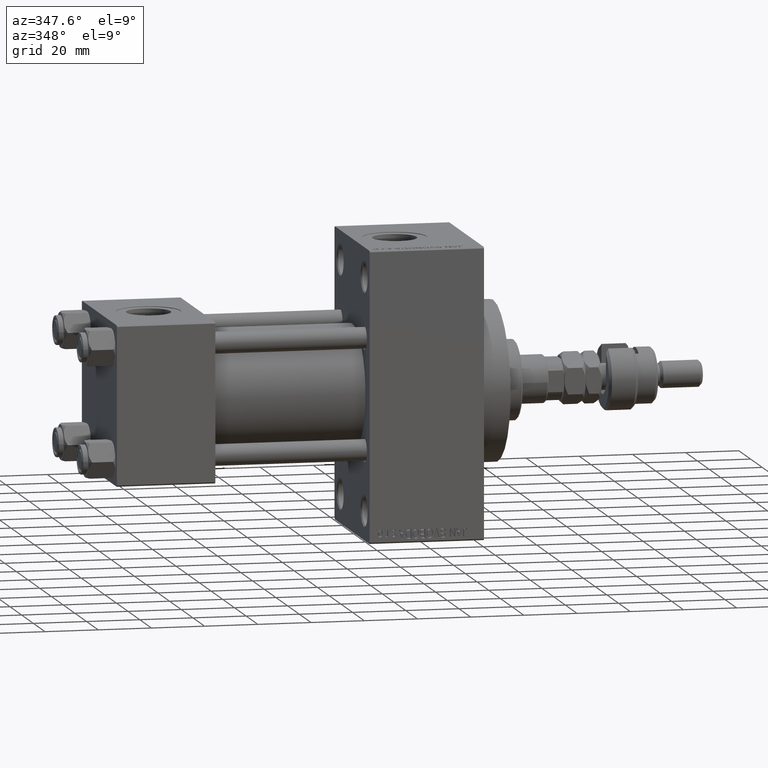
[diagram: clean part render]
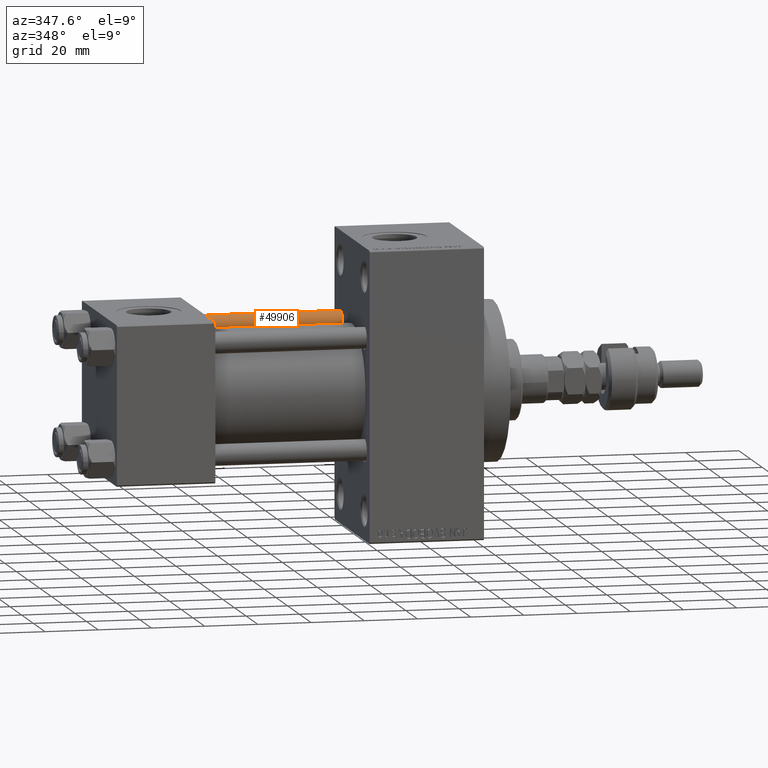
[diagram: same view with one face highlighted and labeled with its STEP entity id]
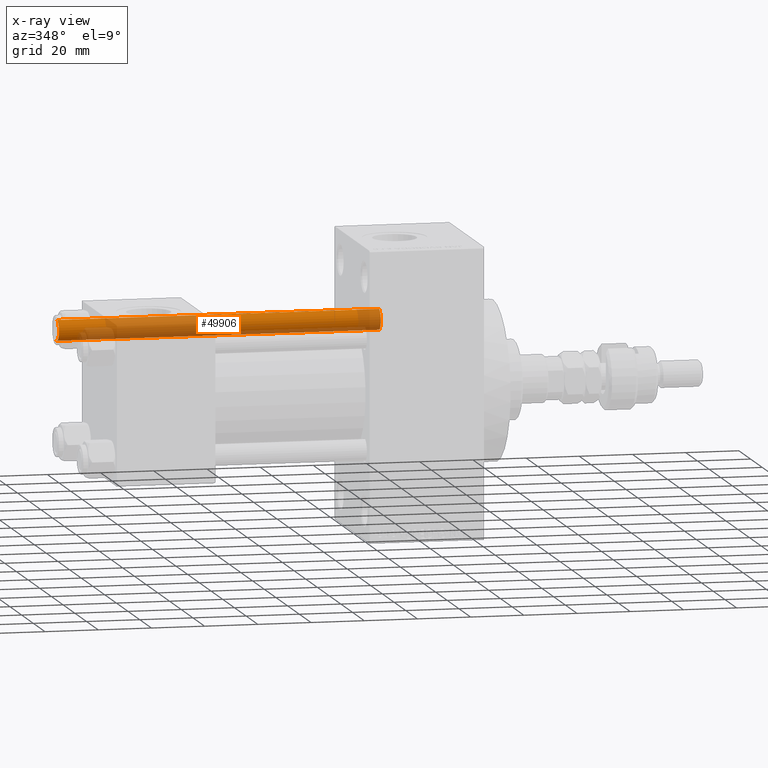
[diagram: x-ray of the same camera — body ghosted, the highlighted face saturated]
A machine part, auxiliary view. The second image highlights one B-rep face of the part: STEP entity #49906.
The next image is the same camera in x-ray: the body ghosted, the highlighted face saturated — about 53% of this face is hidden behind the body in this view.
In plain terms, the highlighted cylindrical surface (edge-blend (fillet) strip) has radius 4 mm, axis along (-1, -0, 0).
Its self-contained STEP definition (entity closure, byte-faithful):
#1118 = VERTEX_POINT ( 'NONE', #10628 ) ;
#1899 = CYLINDRICAL_SURFACE ( 'NONE', #10161, 4.000000000000000000 ) ;
#2532 = VERTEX_POINT ( 'NONE', #13312 ) ;
#2672 = CARTESIAN_POINT ( 'NONE',  ( -4.000000000000000000, 0.000000000000000000, 122.0000000000000000 ) ) ;
#8460 = CARTESIAN_POINT ( 'NONE',  ( -4.000000000000000000, 0.000000000000000000, 121.5000000000000426 ) ) ;
#8779 = DIRECTION ( 'NONE',  ( 1.000000000000000000, 0.000000000000000000, 0.000000000000000000 ) ) ;
#9242 = EDGE_CURVE ( 'NONE', #2532, #1118, #14827, .T. ) ;
#9834 = ORIENTED_EDGE ( 'NONE', *, *, #40614, .T. ) ;
#10161 = AXIS2_PLACEMENT_3D ( 'NONE', #17319, #34240, #30191 ) ;
#10628 = CARTESIAN_POINT ( 'NONE',  ( 4.000000000000000000, 4.898587196589411843E-16, 0.5000000000000559552 ) ) ;
#13312 = CARTESIAN_POINT ( 'NONE',  ( 4.000000000000000000, 4.898587196589411843E-16, 121.5000000000000426 ) ) ;
#14827 = LINE ( 'NONE', #45968, #18754 ) ;
#16612 = CIRCLE ( 'NONE', #49735, 4.000000000000000000 ) ;
#17319 = CARTESIAN_POINT ( 'NONE',  ( 0.000000000000000000, 0.000000000000000000, 122.0000000000000000 ) ) ;
#17383 = DIRECTION ( 'NONE',  ( -0.000000000000000000, -0.000000000000000000, 1.000000000000000000 ) ) ;
#18754 = VECTOR ( 'NONE', #30757, 1000.000000000000000 ) ;
#19985 = CIRCLE ( 'NONE', #45857, 4.000000000000000000 ) ;
#20434 = ORIENTED_EDGE ( 'NONE', *, *, #9242, .F. ) ;
#20861 = FACE_OUTER_BOUND ( 'NONE', #40306, .T. ) ;
#22478 = ORIENTED_EDGE ( 'NONE', *, *, #42104, .T. ) ;
#23121 = CARTESIAN_POINT ( 'NONE',  ( -4.000000000000000000, 0.000000000000000000, 0.5000000000000559552 ) ) ;
#23974 = VECTOR ( 'NONE', #48983, 1000.000000000000000 ) ;
#24177 = DIRECTION ( 'NONE',  ( 1.000000000000000000, 0.000000000000000000, 0.000000000000000000 ) ) ;
#24684 = DIRECTION ( 'NONE',  ( 0.000000000000000000, 0.000000000000000000, -1.000000000000000000 ) ) ;
#26706 = ORIENTED_EDGE ( 'NONE', *, *, #37586, .T. ) ;
#30191 = DIRECTION ( 'NONE',  ( -1.000000000000000000, 0.000000000000000000, 0.000000000000000000 ) ) ;
#30757 = DIRECTION ( 'NONE',  ( -0.000000000000000000, -0.000000000000000000, -1.000000000000000000 ) ) ;
#34240 = DIRECTION ( 'NONE',  ( -0.000000000000000000, -0.000000000000000000, -1.000000000000000000 ) ) ;
#37352 = LINE ( 'NONE', #2672, #23974 ) ;
#37586 = EDGE_CURVE ( 'NONE', #2532, #39365, #16612, .T. ) ;
#39365 = VERTEX_POINT ( 'NONE', #8460 ) ;
#39878 = CARTESIAN_POINT ( 'NONE',  ( 0.000000000000000000, 0.000000000000000000, 121.5000000000000426 ) ) ;
#40306 = EDGE_LOOP ( 'NONE', ( #20434, #26706, #9834, #22478 ) ) ;
#40614 = EDGE_CURVE ( 'NONE', #39365, #42906, #37352, .T. ) ;
#42104 = EDGE_CURVE ( 'NONE', #42906, #1118, #19985, .T. ) ;
#42906 = VERTEX_POINT ( 'NONE', #23121 ) ;
#45857 = AXIS2_PLACEMENT_3D ( 'NONE', #48272, #17383, #8779 ) ;
#45968 = CARTESIAN_POINT ( 'NONE',  ( 4.000000000000000000, 4.898587196589411843E-16, 122.0000000000000000 ) ) ;
#48272 = CARTESIAN_POINT ( 'NONE',  ( 0.000000000000000000, 0.000000000000000000, 0.5000000000000559552 ) ) ;
#48983 = DIRECTION ( 'NONE',  ( -0.000000000000000000, -0.000000000000000000, -1.000000000000000000 ) ) ;
#49735 = AXIS2_PLACEMENT_3D ( 'NONE', #39878, #24684, #24177 ) ;
#49906 = ADVANCED_FACE ( 'NONE', ( #20861 ), #1899, .T. ) ;